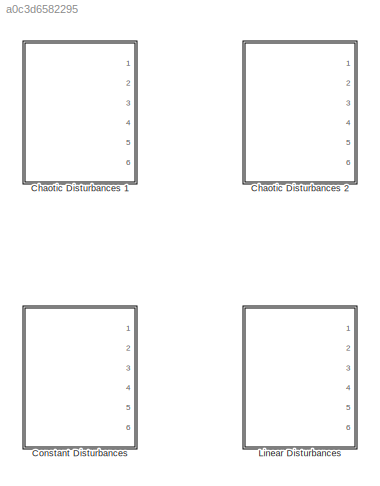
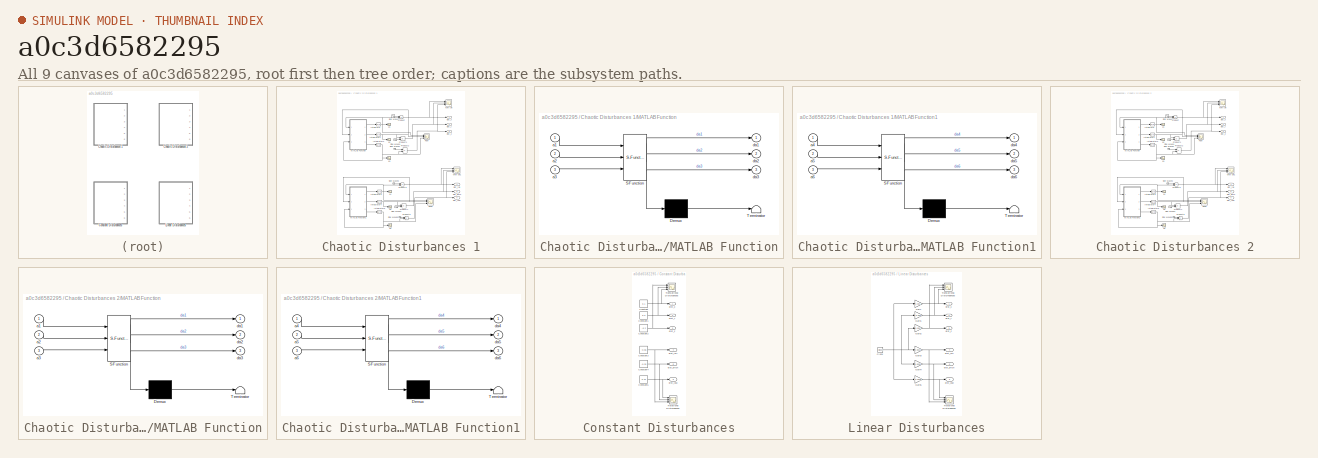
[diagram: thumbnail index - all 9 canvases of the model, root first then tree order]
MODEL slx_a0c3d6582295
KIND model
CONFIG AbsTol = auto
CONFIG EnableMultiTasking = off
CONFIG FixedStep = auto
CONFIG MaxStep = auto
CONFIG MinStep = auto
CONFIG RelTol = 1e-3
CONFIG SampleTimeConstraint = Unconstrained
CONFIG Solver = ode45
CONFIG SolverName = ode45
CONFIG StartTime = 0.0
CONFIG StopTime = 100
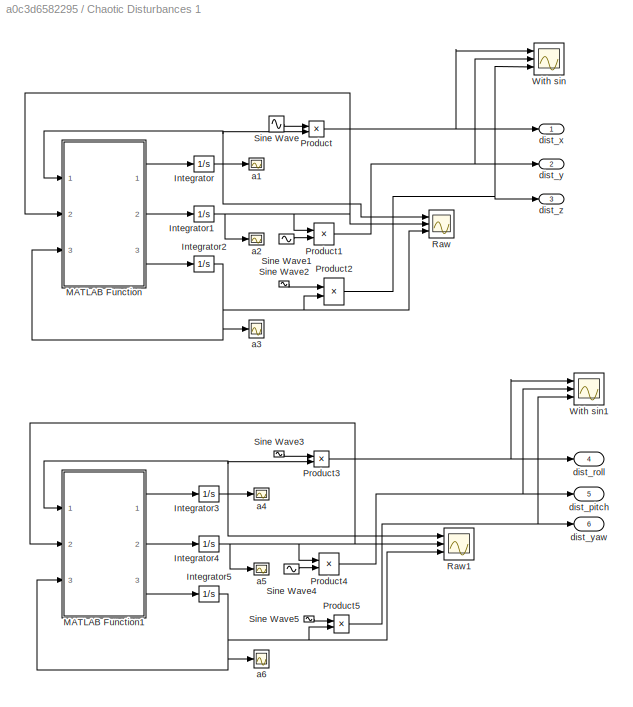
BLOCK [SubSystem] Chaotic Disturbances 1
  Ports = [0, 6]
  RequestExecContextInheritance = off
BLOCK [Integrator] Chaotic Disturbances 1/Integrator
  InitialCondition = -6
  Ports = [1, 1]
BLOCK [Integrator] Chaotic Disturbances 1/Integrator1
  InitialCondition = -5
  Ports = [1, 1]
BLOCK [Integrator] Chaotic Disturbances 1/Integrator2
  InitialCondition = 22
  Ports = [1, 1]
BLOCK [Integrator] Chaotic Disturbances 1/Integrator3
  InitialCondition = -10
  Ports = [1, 1]
BLOCK [Integrator] Chaotic Disturbances 1/Integrator4
  InitialCondition = -12
  Ports = [1, 1]
BLOCK [Integrator] Chaotic Disturbances 1/Integrator5
  InitialCondition = 24
  Ports = [1, 1]
BLOCK [SubSystem] Chaotic Disturbances 1/MATLAB Function
  ErrorFcn = Stateflow.Translate.translate
  PermitHierarchicalResolution = ExplicitOnly
  Ports = [3, 3]
  RequestExecContextInheritance = off
  SFBlockType = MATLAB Function
  TreatAsAtomicUnit = on
BLOCK [Demux] Chaotic Disturbances 1/MATLAB Function/ Demux 
  Outputs = 1
  Ports = [1, 1]
BLOCK [S-Function] Chaotic Disturbances 1/MATLAB Function/ SFunction 
  EnableBusSupport = on
  FunctionName = sf_sfun
  PortCounts = [3 4]
  Ports = [3, 4]
  SFcnIsStateOwnerBlock = off
  SFunctionDeploymentMode = off
  Tag = Stateflow S-Function disturbances 3
BLOCK [Terminator] Chaotic Disturbances 1/MATLAB Function/ Terminator 
BLOCK [Inport] Chaotic Disturbances 1/MATLAB Function/a1
  IconDisplay = Port number
BLOCK [Inport] Chaotic Disturbances 1/MATLAB Function/a2
  IconDisplay = Port number
  Port = 2
BLOCK [Inport] Chaotic Disturbances 1/MATLAB Function/a3
  IconDisplay = Port number
  Port = 3
BLOCK [Outport] Chaotic Disturbances 1/MATLAB Function/da1
  IconDisplay = Port number
BLOCK [Outport] Chaotic Disturbances 1/MATLAB Function/da2
  IconDisplay = Port number
  Port = 2
BLOCK [Outport] Chaotic Disturbances 1/MATLAB Function/da3
  IconDisplay = Port number
  Port = 3
BLOCK [SubSystem] Chaotic Disturbances 1/MATLAB Function1
  ErrorFcn = Stateflow.Translate.translate
  PermitHierarchicalResolution = ExplicitOnly
  Ports = [3, 3]
  RequestExecContextInheritance = off
  SFBlockType = MATLAB Function
  TreatAsAtomicUnit = on
BLOCK [Demux] Chaotic Disturbances 1/MATLAB Function1/ Demux 
  Outputs = 1
  Ports = [1, 1]
BLOCK [S-Function] Chaotic Disturbances 1/MATLAB Function1/ SFunction 
  EnableBusSupport = on
  FunctionName = sf_sfun
  PortCounts = [3 4]
  Ports = [3, 4]
  SFcnIsStateOwnerBlock = off
  SFunctionDeploymentMode = off
  Tag = Stateflow S-Function disturbances 4
BLOCK [Terminator] Chaotic Disturbances 1/MATLAB Function1/ Terminator 
BLOCK [Inport] Chaotic Disturbances 1/MATLAB Function1/a4
  IconDisplay = Port number
BLOCK [Inport] Chaotic Disturbances 1/MATLAB Function1/a5
  IconDisplay = Port number
  Port = 2
BLOCK [Inport] Chaotic Disturbances 1/MATLAB Function1/a6
  IconDisplay = Port number
  Port = 3
BLOCK [Outport] Chaotic Disturbances 1/MATLAB Function1/da4
  IconDisplay = Port number
BLOCK [Outport] Chaotic Disturbances 1/MATLAB Function1/da5
  IconDisplay = Port number
  Port = 2
BLOCK [Outport] Chaotic Disturbances 1/MATLAB Function1/da6
  IconDisplay = Port number
  Port = 3
BLOCK [Product] Chaotic Disturbances 1/Product
  InputSameDT = off
  OutDataTypeStr = Inherit: Inherit via internal rule
  Ports = [2, 1]
  RndMeth = Floor
  SaturateOnIntegerOverflow = off
BLOCK [Product] Chaotic Disturbances 1/Product1
  InputSameDT = off
  OutDataTypeStr = Inherit: Inherit via internal rule
  Ports = [2, 1]
  RndMeth = Floor
  SaturateOnIntegerOverflow = off
BLOCK [Product] Chaotic Disturbances 1/Product2
  InputSameDT = off
  OutDataTypeStr = Inherit: Inherit via internal rule
  Ports = [2, 1]
  RndMeth = Floor
  SaturateOnIntegerOverflow = off
BLOCK [Product] Chaotic Disturbances 1/Product3
  InputSameDT = off
  OutDataTypeStr = Inherit: Inherit via internal rule
  Ports = [2, 1]
  RndMeth = Floor
  SaturateOnIntegerOverflow = off
BLOCK [Product] Chaotic Disturbances 1/Product4
  InputSameDT = off
  OutDataTypeStr = Inherit: Inherit via internal rule
  Ports = [2, 1]
  RndMeth = Floor
  SaturateOnIntegerOverflow = off
BLOCK [Product] Chaotic Disturbances 1/Product5
  InputSameDT = off
  OutDataTypeStr = Inherit: Inherit via internal rule
  Ports = [2, 1]
  RndMeth = Floor
  SaturateOnIntegerOverflow = off
BLOCK [Scope] Chaotic Disturbances 1/Raw
  Floating = off
  NumInputPorts = 3
  Ports = [3]
  ScopeSpecificationString = Simulink.scopes.TimeScopeBlockCfg('CurrentConfiguration', extmgr.ConfigurationSet(extmgr.Configuration('Core','General UI',true),extmgr.Configuration('Core','Source UI',true),extmgr.Configuration('Sources','WiredSimulink',true,'DataLoggingVariableName','ScopeData6'),extmgr.Configuration('Visuals','Time Domain',true,'SerializedDisplays',{struct('MinYLimReal','-25.4324','MaxYLimReal','56.09402','YLa...<+1470ch>
BLOCK [Scope] Chaotic Disturbances 1/Raw1
  Floating = off
  NumInputPorts = 3
  Ports = [3]
  ScopeSpecificationString = Simulink.scopes.TimeScopeBlockCfg('CurrentConfiguration', extmgr.ConfigurationSet(extmgr.Configuration('Core','General UI',true),extmgr.Configuration('Core','Source UI',true),extmgr.Configuration('Sources','WiredSimulink',true,'DataLoggingVariableName','ScopeData7'),extmgr.Configuration('Visuals','Time Domain',true,'SerializedDisplays',{struct('MinYLimReal','24.8548','MaxYLimReal','24.88341','YLab...<+1444ch>
BLOCK [Sin] Chaotic Disturbances 1/Sine Wave
  Amplitude = 0.01
  Frequency = 0.5
  Phase = -25
  Ports = [0, 1]
  SampleTime = 0
BLOCK [Sin] Chaotic Disturbances 1/Sine Wave1
  Amplitude = 0.01
  Frequency = 0.5
  Phase = -45
  Ports = [0, 1]
  SampleTime = 0
BLOCK [Sin] Chaotic Disturbances 1/Sine Wave2
  Amplitude = 0.01
  Frequency = 0.5
  Phase = -65
  Ports = [0, 1]
  SampleTime = 0
BLOCK [Sin] Chaotic Disturbances 1/Sine Wave3
  Amplitude = 0.01
  Frequency = 0.5
  Phase = -10
  Ports = [0, 1]
  SampleTime = 0
BLOCK [Sin] Chaotic Disturbances 1/Sine Wave4
  Amplitude = 0.01
  Frequency = 0.5
  Phase = -30
  Ports = [0, 1]
  SampleTime = 0
BLOCK [Sin] Chaotic Disturbances 1/Sine Wave5
  Amplitude = 0.01
  Frequency = 0.5
  Phase = -50
  Ports = [0, 1]
  SampleTime = 0
BLOCK [Scope] Chaotic Disturbances 1/With sin
  Floating = off
  NumInputPorts = 3
  Ports = [3]
  ScopeSpecificationString = Simulink.scopes.TimeScopeBlockCfg('CurrentConfiguration', extmgr.ConfigurationSet(extmgr.Configuration('Core','General UI',true),extmgr.Configuration('Core','Source UI',true),extmgr.Configuration('Sources','WiredSimulink',true,'DataLoggingVariableName','ScopeData8'),extmgr.Configuration('Visuals','Time Domain',true,'SerializedDisplays',{struct('MinYLimReal','-0.57278','MaxYLimReal','0.5005','YLabe...<+1432ch>  <repeated x4 — deduplicated; at blocks: With sin, Translational Disturbances, Translational Disturnbances>
BLOCK [Scope] Chaotic Disturbances 1/With sin1
  Floating = off
  NumInputPorts = 3
  Ports = [3]
  ScopeSpecificationString = Simulink.scopes.TimeScopeBlockCfg('CurrentConfiguration', extmgr.ConfigurationSet(extmgr.Configuration('Core','General UI',true),extmgr.Configuration('Core','Source UI',true),extmgr.Configuration('Sources','WiredSimulink',true,'DataLoggingVariableName','ScopeData9'),extmgr.Configuration('Visuals','Time Domain',true,'SerializedDisplays',{struct('MinYLimReal','-0.50118','MaxYLimReal','0.48485','YLab...<+1435ch>  <repeated x4 — deduplicated; at blocks: With sin1, Rotational Disturbances>
BLOCK [Scope] Chaotic Disturbances 1/a1 
  Floating = off
  NumInputPorts = 1
  Ports = [1]
  ScopeSpecificationString = Simulink.scopes.TimeScopeBlockCfg('CurrentConfiguration', extmgr.ConfigurationSet(extmgr.Configuration('Core','General UI',true),extmgr.Configuration('Core','Source UI',true),extmgr.Configuration('Sources','WiredSimulink',true,'DataLoggingVariableName','ScopeData10'),extmgr.Configuration('Visuals','Time Domain',true,'SerializedDisplays',{struct('MinYLimReal','-20.42951','MaxYLimReal','23.90809','Y...<+1403ch>
BLOCK [Scope] Chaotic Disturbances 1/a2
  Floating = off
  NumInputPorts = 1
  Ports = [1]
  ScopeSpecificationString = Simulink.scopes.TimeScopeBlockCfg('CurrentConfiguration', extmgr.ConfigurationSet(extmgr.Configuration('Core','General UI',true),extmgr.Configuration('Core','Source UI',true),extmgr.Configuration('Sources','WiredSimulink',true,'DataLoggingVariableName','ScopeData12'),extmgr.Configuration('Visuals','Time Domain',true,'SerializedDisplays',{struct('MinYLimReal','-26.78015','MaxYLimReal','33.39911','Y...<+1404ch>
BLOCK [Scope] Chaotic Disturbances 1/a3
  Floating = off
  NumInputPorts = 1
  Ports = [1]
  ScopeSpecificationString = Simulink.scopes.TimeScopeBlockCfg('CurrentConfiguration', extmgr.ConfigurationSet(extmgr.Configuration('Core','General UI',true),extmgr.Configuration('Core','Source UI',true),extmgr.Configuration('Sources','WiredSimulink',true,'DataLoggingVariableName','ScopeData14'),extmgr.Configuration('Visuals','Time Domain',true,'SerializedDisplays',{struct('MinYLimReal','1.77337','MaxYLimReal','48.67578','YLa...<+1400ch>
BLOCK [Scope] Chaotic Disturbances 1/a4
  Floating = off
  NumInputPorts = 1
  Ports = [1]
  ScopeSpecificationString = Simulink.scopes.TimeScopeBlockCfg('CurrentConfiguration', extmgr.ConfigurationSet(extmgr.Configuration('Core','General UI',true),extmgr.Configuration('Core','Source UI',true),extmgr.Configuration('Sources','WiredSimulink',true,'DataLoggingVariableName','ScopeData11'),extmgr.Configuration('Visuals','Time Domain',true,'SerializedDisplays',{struct('MinYLimReal','-20.13212','MaxYLimReal','23.39392','Y...<+1403ch>
BLOCK [Scope] Chaotic Disturbances 1/a5
  Floating = off
  NumInputPorts = 1
  Ports = [1]
  ScopeSpecificationString = Simulink.scopes.TimeScopeBlockCfg('CurrentConfiguration', extmgr.ConfigurationSet(extmgr.Configuration('Core','General UI',true),extmgr.Configuration('Core','Source UI',true),extmgr.Configuration('Sources','WiredSimulink',true,'DataLoggingVariableName','ScopeData13'),extmgr.Configuration('Visuals','Time Domain',true,'SerializedDisplays',{struct('MinYLimReal','-28.40052','MaxYLimReal','27.18299','Y...<+1404ch>
BLOCK [Scope] Chaotic Disturbances 1/a6
  Floating = off
  NumInputPorts = 1
  Ports = [1]
  ScopeSpecificationString = Simulink.scopes.TimeScopeBlockCfg('CurrentConfiguration', extmgr.ConfigurationSet(extmgr.Configuration('Core','General UI',true),extmgr.Configuration('Core','Source UI',true),extmgr.Configuration('Sources','WiredSimulink',true,'DataLoggingVariableName','ScopeData15'),extmgr.Configuration('Visuals','Time Domain',true,'SerializedDisplays',{struct('MinYLimReal','-0.14299','MaxYLimReal','49.22803','YL...<+1402ch>
BLOCK [Outport] Chaotic Disturbances 1/dist_pitch
  IconDisplay = Port number
  Port = 5
BLOCK [Outport] Chaotic Disturbances 1/dist_roll
  IconDisplay = Port number
  Port = 4
BLOCK [Outport] Chaotic Disturbances 1/dist_x
  IconDisplay = Port number
BLOCK [Outport] Chaotic Disturbances 1/dist_y
  IconDisplay = Port number
  Port = 2
BLOCK [Outport] Chaotic Disturbances 1/dist_yaw
  IconDisplay = Port number
  Port = 6
BLOCK [Outport] Chaotic Disturbances 1/dist_z
  IconDisplay = Port number
  Port = 3
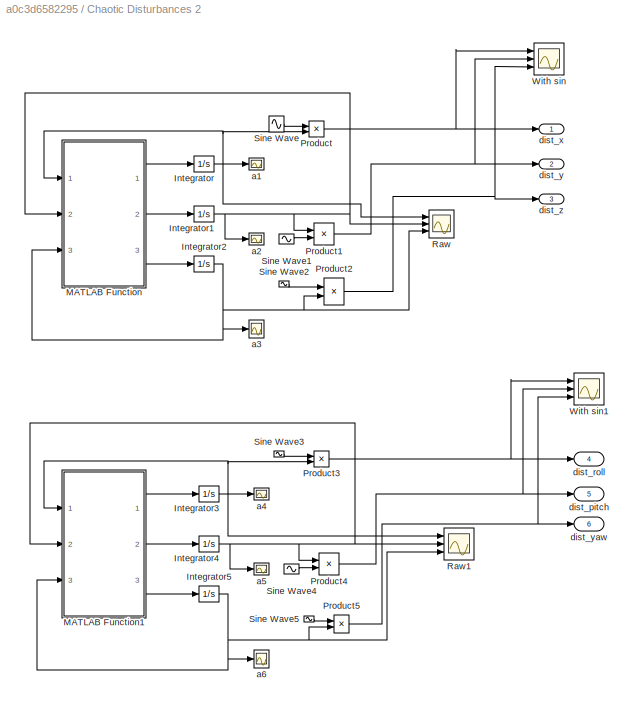
BLOCK [SubSystem] Chaotic Disturbances 2
  Ports = [0, 6]
  RequestExecContextInheritance = off
BLOCK [Integrator] Chaotic Disturbances 2/Integrator
  InitialCondition = -2
  Ports = [1, 1]
BLOCK [Integrator] Chaotic Disturbances 2/Integrator1
  InitialCondition = -8
  Ports = [1, 1]
BLOCK [Integrator] Chaotic Disturbances 2/Integrator2
  InitialCondition = 15
  Ports = [1, 1]
BLOCK [Integrator] Chaotic Disturbances 2/Integrator3
  InitialCondition = -4
  Ports = [1, 1]
BLOCK [Integrator] Chaotic Disturbances 2/Integrator4
  InitialCondition = -15
  Ports = [1, 1]
BLOCK [Integrator] Chaotic Disturbances 2/Integrator5
  InitialCondition = 20
  Ports = [1, 1]
BLOCK [SubSystem] Chaotic Disturbances 2/MATLAB Function
  ErrorFcn = Stateflow.Translate.translate
  PermitHierarchicalResolution = ExplicitOnly
  Ports = [3, 3]
  RequestExecContextInheritance = off
  SFBlockType = MATLAB Function
  TreatAsAtomicUnit = on
BLOCK [Demux] Chaotic Disturbances 2/MATLAB Function/ Demux 
  Outputs = 1
  Ports = [1, 1]
BLOCK [S-Function] Chaotic Disturbances 2/MATLAB Function/ SFunction 
  EnableBusSupport = on
  FunctionName = sf_sfun
  PortCounts = [3 4]
  Ports = [3, 4]
  SFcnIsStateOwnerBlock = off
  SFunctionDeploymentMode = off
  Tag = Stateflow S-Function disturbances 1
BLOCK [Terminator] Chaotic Disturbances 2/MATLAB Function/ Terminator 
BLOCK [Inport] Chaotic Disturbances 2/MATLAB Function/a1
  IconDisplay = Port number
BLOCK [Inport] Chaotic Disturbances 2/MATLAB Function/a2
  IconDisplay = Port number
  Port = 2
BLOCK [Inport] Chaotic Disturbances 2/MATLAB Function/a3
  IconDisplay = Port number
  Port = 3
BLOCK [Outport] Chaotic Disturbances 2/MATLAB Function/da1
  IconDisplay = Port number
BLOCK [Outport] Chaotic Disturbances 2/MATLAB Function/da2
  IconDisplay = Port number
  Port = 2
BLOCK [Outport] Chaotic Disturbances 2/MATLAB Function/da3
  IconDisplay = Port number
  Port = 3
BLOCK [SubSystem] Chaotic Disturbances 2/MATLAB Function1
  ErrorFcn = Stateflow.Translate.translate
  PermitHierarchicalResolution = ExplicitOnly
  Ports = [3, 3]
  RequestExecContextInheritance = off
  SFBlockType = MATLAB Function
  TreatAsAtomicUnit = on
BLOCK [Demux] Chaotic Disturbances 2/MATLAB Function1/ Demux 
  Outputs = 1
  Ports = [1, 1]
BLOCK [S-Function] Chaotic Disturbances 2/MATLAB Function1/ SFunction 
  EnableBusSupport = on
  FunctionName = sf_sfun
  PortCounts = [3 4]
  Ports = [3, 4]
  SFcnIsStateOwnerBlock = off
  SFunctionDeploymentMode = off
  Tag = Stateflow S-Function disturbances 2
BLOCK [Terminator] Chaotic Disturbances 2/MATLAB Function1/ Terminator 
BLOCK [Inport] Chaotic Disturbances 2/MATLAB Function1/a4
  IconDisplay = Port number
BLOCK [Inport] Chaotic Disturbances 2/MATLAB Function1/a5
  IconDisplay = Port number
  Port = 2
BLOCK [Inport] Chaotic Disturbances 2/MATLAB Function1/a6
  IconDisplay = Port number
  Port = 3
BLOCK [Outport] Chaotic Disturbances 2/MATLAB Function1/da4
  IconDisplay = Port number
BLOCK [Outport] Chaotic Disturbances 2/MATLAB Function1/da5
  IconDisplay = Port number
  Port = 2
BLOCK [Outport] Chaotic Disturbances 2/MATLAB Function1/da6
  IconDisplay = Port number
  Port = 3
BLOCK [Product] Chaotic Disturbances 2/Product
  InputSameDT = off
  OutDataTypeStr = Inherit: Inherit via internal rule
  Ports = [2, 1]
  RndMeth = Floor
  SaturateOnIntegerOverflow = off
BLOCK [Product] Chaotic Disturbances 2/Product1
  InputSameDT = off
  OutDataTypeStr = Inherit: Inherit via internal rule
  Ports = [2, 1]
  RndMeth = Floor
  SaturateOnIntegerOverflow = off
BLOCK [Product] Chaotic Disturbances 2/Product2
  InputSameDT = off
  OutDataTypeStr = Inherit: Inherit via internal rule
  Ports = [2, 1]
  RndMeth = Floor
  SaturateOnIntegerOverflow = off
BLOCK [Product] Chaotic Disturbances 2/Product3
  InputSameDT = off
  OutDataTypeStr = Inherit: Inherit via internal rule
  Ports = [2, 1]
  RndMeth = Floor
  SaturateOnIntegerOverflow = off
BLOCK [Product] Chaotic Disturbances 2/Product4
  InputSameDT = off
  OutDataTypeStr = Inherit: Inherit via internal rule
  Ports = [2, 1]
  RndMeth = Floor
  SaturateOnIntegerOverflow = off
BLOCK [Product] Chaotic Disturbances 2/Product5
  InputSameDT = off
  OutDataTypeStr = Inherit: Inherit via internal rule
  Ports = [2, 1]
  RndMeth = Floor
  SaturateOnIntegerOverflow = off
BLOCK [Scope] Chaotic Disturbances 2/Raw
  Floating = off
  NumInputPorts = 3
  Ports = [3]
  ScopeSpecificationString = Simulink.scopes.TimeScopeBlockCfg('CurrentConfiguration', extmgr.ConfigurationSet(extmgr.Configuration('Core','General UI',true),extmgr.Configuration('Core','Source UI',true),extmgr.Configuration('Sources','WiredSimulink',true,'DataLoggingVariableName','ScopeData6'),extmgr.Configuration('Visuals','Time Domain',true,'SerializedDisplays',{struct('MinYLimReal','-25.4324','MaxYLimReal','56.09402','YLa...<+1470ch>
BLOCK [Scope] Chaotic Disturbances 2/Raw1
  Floating = off
  NumInputPorts = 3
  Ports = [3]
  ScopeSpecificationString = Simulink.scopes.TimeScopeBlockCfg('CurrentConfiguration', extmgr.ConfigurationSet(extmgr.Configuration('Core','General UI',true),extmgr.Configuration('Core','Source UI',true),extmgr.Configuration('Sources','WiredSimulink',true,'DataLoggingVariableName','ScopeData7'),extmgr.Configuration('Visuals','Time Domain',true,'SerializedDisplays',{struct('MinYLimReal','24.8548','MaxYLimReal','24.88341','YLab...<+1444ch>
BLOCK [Sin] Chaotic Disturbances 2/Sine Wave
  Amplitude = 0.01
  Frequency = 0.5
  Phase = -20
  Ports = [0, 1]
  SampleTime = 0
BLOCK [Sin] Chaotic Disturbances 2/Sine Wave1
  Amplitude = 0.01
  Frequency = 0.5
  Phase = -40
  Ports = [0, 1]
  SampleTime = 0
BLOCK [Sin] Chaotic Disturbances 2/Sine Wave2
  Amplitude = 0.01
  Frequency = 0.5
  Phase = -60
  Ports = [0, 1]
  SampleTime = 0
BLOCK [Sin] Chaotic Disturbances 2/Sine Wave3
  Amplitude = 0.01
  Frequency = 0.5
  Phase = -15
  Ports = [0, 1]
  SampleTime = 0
BLOCK [Sin] Chaotic Disturbances 2/Sine Wave4
  Amplitude = 0.01
  Frequency = 0.5
  Phase = -35
  Ports = [0, 1]
  SampleTime = 0
BLOCK [Sin] Chaotic Disturbances 2/Sine Wave5
  Amplitude = 0.01
  Frequency = 0.5
  Phase = -55
  Ports = [0, 1]
  SampleTime = 0
BLOCK [Scope] Chaotic Disturbances 2/With sin
  Floating = off
  NumInputPorts = 3
  Ports = [3]
BLOCK [Scope] Chaotic Disturbances 2/With sin1
  Floating = off
  NumInputPorts = 3
  Ports = [3]
BLOCK [Scope] Chaotic Disturbances 2/a1 
  Floating = off
  NumInputPorts = 1
  Ports = [1]
  ScopeSpecificationString = Simulink.scopes.TimeScopeBlockCfg('CurrentConfiguration', extmgr.ConfigurationSet(extmgr.Configuration('Core','General UI',true),extmgr.Configuration('Core','Source UI',true),extmgr.Configuration('Sources','WiredSimulink',true,'DataLoggingVariableName','ScopeData10'),extmgr.Configuration('Visuals','Time Domain',true,'SerializedDisplays',{struct('MinYLimReal','-20.42951','MaxYLimReal','23.90809','Y...<+1403ch>
BLOCK [Scope] Chaotic Disturbances 2/a2
  Floating = off
  NumInputPorts = 1
  Ports = [1]
  ScopeSpecificationString = Simulink.scopes.TimeScopeBlockCfg('CurrentConfiguration', extmgr.ConfigurationSet(extmgr.Configuration('Core','General UI',true),extmgr.Configuration('Core','Source UI',true),extmgr.Configuration('Sources','WiredSimulink',true,'DataLoggingVariableName','ScopeData12'),extmgr.Configuration('Visuals','Time Domain',true,'SerializedDisplays',{struct('MinYLimReal','-26.78015','MaxYLimReal','33.39911','Y...<+1404ch>
BLOCK [Scope] Chaotic Disturbances 2/a3
  Floating = off
  NumInputPorts = 1
  Ports = [1]
  ScopeSpecificationString = Simulink.scopes.TimeScopeBlockCfg('CurrentConfiguration', extmgr.ConfigurationSet(extmgr.Configuration('Core','General UI',true),extmgr.Configuration('Core','Source UI',true),extmgr.Configuration('Sources','WiredSimulink',true,'DataLoggingVariableName','ScopeData14'),extmgr.Configuration('Visuals','Time Domain',true,'SerializedDisplays',{struct('MinYLimReal','1.77337','MaxYLimReal','48.67578','YLa...<+1400ch>
BLOCK [Scope] Chaotic Disturbances 2/a4
  Floating = off
  NumInputPorts = 1
  Ports = [1]
  ScopeSpecificationString = Simulink.scopes.TimeScopeBlockCfg('CurrentConfiguration', extmgr.ConfigurationSet(extmgr.Configuration('Core','General UI',true),extmgr.Configuration('Core','Source UI',true),extmgr.Configuration('Sources','WiredSimulink',true,'DataLoggingVariableName','ScopeData11'),extmgr.Configuration('Visuals','Time Domain',true,'SerializedDisplays',{struct('MinYLimReal','-20.13212','MaxYLimReal','23.39392','Y...<+1403ch>
BLOCK [Scope] Chaotic Disturbances 2/a5
  Floating = off
  NumInputPorts = 1
  Ports = [1]
  ScopeSpecificationString = Simulink.scopes.TimeScopeBlockCfg('CurrentConfiguration', extmgr.ConfigurationSet(extmgr.Configuration('Core','General UI',true),extmgr.Configuration('Core','Source UI',true),extmgr.Configuration('Sources','WiredSimulink',true,'DataLoggingVariableName','ScopeData13'),extmgr.Configuration('Visuals','Time Domain',true,'SerializedDisplays',{struct('MinYLimReal','-28.40052','MaxYLimReal','27.18299','Y...<+1404ch>
BLOCK [Scope] Chaotic Disturbances 2/a6
  Floating = off
  NumInputPorts = 1
  Ports = [1]
  ScopeSpecificationString = Simulink.scopes.TimeScopeBlockCfg('CurrentConfiguration', extmgr.ConfigurationSet(extmgr.Configuration('Core','General UI',true),extmgr.Configuration('Core','Source UI',true),extmgr.Configuration('Sources','WiredSimulink',true,'DataLoggingVariableName','ScopeData15'),extmgr.Configuration('Visuals','Time Domain',true,'SerializedDisplays',{struct('MinYLimReal','-2.76714','MaxYLimReal','52.19983','YL...<+1402ch>
BLOCK [Outport] Chaotic Disturbances 2/dist_pitch
  IconDisplay = Port number
  Port = 5
BLOCK [Outport] Chaotic Disturbances 2/dist_roll
  IconDisplay = Port number
  Port = 4
BLOCK [Outport] Chaotic Disturbances 2/dist_x
  IconDisplay = Port number
BLOCK [Outport] Chaotic Disturbances 2/dist_y
  IconDisplay = Port number
  Port = 2
BLOCK [Outport] Chaotic Disturbances 2/dist_yaw
  IconDisplay = Port number
  Port = 6
BLOCK [Outport] Chaotic Disturbances 2/dist_z
  IconDisplay = Port number
  Port = 3
BLOCK [SubSystem] Constant Disturbances
  Ports = [0, 6]
  RequestExecContextInheritance = off
BLOCK [Constant] Constant Disturbances/Constant
  Value = 0.1
BLOCK [Constant] Constant Disturbances/Constant1
  Value = 0.3
BLOCK [Constant] Constant Disturbances/Constant2
  Value = -0.2
BLOCK [Constant] Constant Disturbances/Constant3
  Value = -0.05
BLOCK [Constant] Constant Disturbances/Constant4
  Value = -0.25
BLOCK [Constant] Constant Disturbances/Constant5
  Value = 0.15
BLOCK [Scope] Constant Disturbances/Rotational Disturbances
  Floating = off
  NumInputPorts = 3
  Ports = [3]
BLOCK [Scope] Constant Disturbances/Translational Disturbances
  Floating = off
  NumInputPorts = 3
  Ports = [3]
BLOCK [Outport] Constant Disturbances/dist_pitch
  IconDisplay = Port number
  Port = 5
BLOCK [Outport] Constant Disturbances/dist_roll
  IconDisplay = Port number
  Port = 4
BLOCK [Outport] Constant Disturbances/dist_x
  IconDisplay = Port number
BLOCK [Outport] Constant Disturbances/dist_y
  IconDisplay = Port number
  Port = 2
BLOCK [Outport] Constant Disturbances/dist_yaw
  IconDisplay = Port number
  Port = 6
BLOCK [Outport] Constant Disturbances/dist_z
  IconDisplay = Port number
  Port = 3
BLOCK [SubSystem] Linear Disturbances
  Ports = [0, 6]
  RequestExecContextInheritance = off
BLOCK [Clock] Linear Disturbances/Clock
BLOCK [Gain] Linear Disturbances/Gain
  Gain = 0.001
  OutDataTypeStr = Inherit: Inherit via internal rule
  ParamDataTypeStr = Inherit: Inherit via internal rule
  SaturateOnIntegerOverflow = off
BLOCK [Gain] Linear Disturbances/Gain1
  Gain = -0.003
  OutDataTypeStr = Inherit: Inherit via internal rule
  ParamDataTypeStr = Inherit: Inherit via internal rule
  SaturateOnIntegerOverflow = off
BLOCK [Gain] Linear Disturbances/Gain2
  Gain = 0.002
  OutDataTypeStr = Inherit: Inherit via internal rule
  ParamDataTypeStr = Inherit: Inherit via internal rule
  SaturateOnIntegerOverflow = off
BLOCK [Gain] Linear Disturbances/Gain3
  Gain = 0.0015
  OutDataTypeStr = Inherit: Inherit via internal rule
  ParamDataTypeStr = Inherit: Inherit via internal rule
  SaturateOnIntegerOverflow = off
BLOCK [Gain] Linear Disturbances/Gain4
  Gain = 0.0025
  OutDataTypeStr = Inherit: Inherit via internal rule
  ParamDataTypeStr = Inherit: Inherit via internal rule
  SaturateOnIntegerOverflow = off
BLOCK [Gain] Linear Disturbances/Gain5
  Gain = -0.0025
  OutDataTypeStr = Inherit: Inherit via internal rule
  ParamDataTypeStr = Inherit: Inherit via internal rule
  SaturateOnIntegerOverflow = off
BLOCK [Scope] Linear Disturbances/Rotational Disturbances
  Floating = off
  NumInputPorts = 3
  Ports = [3]
BLOCK [Scope] Linear Disturbances/Translational Disturnbances
  Floating = off
  NumInputPorts = 3
  Ports = [3]
BLOCK [Outport] Linear Disturbances/dist_pitch
  IconDisplay = Port number
  Port = 5
BLOCK [Outport] Linear Disturbances/dist_roll
  IconDisplay = Port number
  Port = 4
BLOCK [Outport] Linear Disturbances/dist_x
  IconDisplay = Port number
BLOCK [Outport] Linear Disturbances/dist_y
  IconDisplay = Port number
  Port = 2
BLOCK [Outport] Linear Disturbances/dist_yaw
  IconDisplay = Port number
  Port = 6
BLOCK [Outport] Linear Disturbances/dist_z
  IconDisplay = Port number
  Port = 3
NET Chaotic Disturbances 1/Integrator1:1 -> Chaotic Disturbances 1/MATLAB Function:2, Chaotic Disturbances 1/Product1:1, Chaotic Disturbances 1/Raw:2, Chaotic Disturbances 1/a2:1
NET Chaotic Disturbances 1/Integrator2:1 -> Chaotic Disturbances 1/MATLAB Function:3, Chaotic Disturbances 1/Product2:2, Chaotic Disturbances 1/Raw:3, Chaotic Disturbances 1/a3:1
NET Chaotic Disturbances 1/Integrator3:1 -> Chaotic Disturbances 1/MATLAB Function1:1, Chaotic Disturbances 1/Product3:2, Chaotic Disturbances 1/Raw1:1, Chaotic Disturbances 1/a4:1
NET Chaotic Disturbances 1/Integrator4:1 -> Chaotic Disturbances 1/MATLAB Function1:2, Chaotic Disturbances 1/Product4:1, Chaotic Disturbances 1/Raw1:2, Chaotic Disturbances 1/a5:1
NET Chaotic Disturbances 1/Integrator5:1 -> Chaotic Disturbances 1/MATLAB Function1:3, Chaotic Disturbances 1/Product5:2, Chaotic Disturbances 1/Raw1:3, Chaotic Disturbances 1/a6:1
NET Chaotic Disturbances 1/Integrator:1 -> Chaotic Disturbances 1/MATLAB Function:1, Chaotic Disturbances 1/Product:2, Chaotic Disturbances 1/Raw:1, Chaotic Disturbances 1/a1 :1
LINE Chaotic Disturbances 1/MATLAB Function1:1 -> Chaotic Disturbances 1/Integrator3:1
LINE Chaotic Disturbances 1/MATLAB Function1:2 -> Chaotic Disturbances 1/Integrator4:1
LINE Chaotic Disturbances 1/MATLAB Function1:3 -> Chaotic Disturbances 1/Integrator5:1
LINE Chaotic Disturbances 1/MATLAB Function:1 -> Chaotic Disturbances 1/Integrator:1
LINE Chaotic Disturbances 1/MATLAB Function:2 -> Chaotic Disturbances 1/Integrator1:1
LINE Chaotic Disturbances 1/MATLAB Function:3 -> Chaotic Disturbances 1/Integrator2:1
NET Chaotic Disturbances 1/Product1:1 -> Chaotic Disturbances 1/With sin:2, Chaotic Disturbances 1/dist_y:1
NET Chaotic Disturbances 1/Product2:1 -> Chaotic Disturbances 1/With sin:3, Chaotic Disturbances 1/dist_z:1
NET Chaotic Disturbances 1/Product3:1 -> Chaotic Disturbances 1/With sin1:1, Chaotic Disturbances 1/dist_roll:1
NET Chaotic Disturbances 1/Product4:1 -> Chaotic Disturbances 1/With sin1:2, Chaotic Disturbances 1/dist_pitch:1
NET Chaotic Disturbances 1/Product5:1 -> Chaotic Disturbances 1/With sin1:3, Chaotic Disturbances 1/dist_yaw:1
NET Chaotic Disturbances 1/Product:1 -> Chaotic Disturbances 1/With sin:1, Chaotic Disturbances 1/dist_x:1
LINE Chaotic Disturbances 1/Sine Wave1:1 -> Chaotic Disturbances 1/Product1:2
LINE Chaotic Disturbances 1/Sine Wave2:1 -> Chaotic Disturbances 1/Product2:1
LINE Chaotic Disturbances 1/Sine Wave3:1 -> Chaotic Disturbances 1/Product3:1
LINE Chaotic Disturbances 1/Sine Wave4:1 -> Chaotic Disturbances 1/Product4:2
LINE Chaotic Disturbances 1/Sine Wave5:1 -> Chaotic Disturbances 1/Product5:1
LINE Chaotic Disturbances 1/Sine Wave:1 -> Chaotic Disturbances 1/Product:1
NET Chaotic Disturbances 2/Integrator1:1 -> Chaotic Disturbances 2/MATLAB Function:2, Chaotic Disturbances 2/Product1:1, Chaotic Disturbances 2/Raw:2, Chaotic Disturbances 2/a2:1
NET Chaotic Disturbances 2/Integrator2:1 -> Chaotic Disturbances 2/MATLAB Function:3, Chaotic Disturbances 2/Product2:2, Chaotic Disturbances 2/Raw:3, Chaotic Disturbances 2/a3:1
NET Chaotic Disturbances 2/Integrator3:1 -> Chaotic Disturbances 2/MATLAB Function1:1, Chaotic Disturbances 2/Product3:2, Chaotic Disturbances 2/Raw1:1, Chaotic Disturbances 2/a4:1
NET Chaotic Disturbances 2/Integrator4:1 -> Chaotic Disturbances 2/MATLAB Function1:2, Chaotic Disturbances 2/Product4:1, Chaotic Disturbances 2/Raw1:2, Chaotic Disturbances 2/a5:1
NET Chaotic Disturbances 2/Integrator5:1 -> Chaotic Disturbances 2/MATLAB Function1:3, Chaotic Disturbances 2/Product5:2, Chaotic Disturbances 2/Raw1:3, Chaotic Disturbances 2/a6:1
NET Chaotic Disturbances 2/Integrator:1 -> Chaotic Disturbances 2/MATLAB Function:1, Chaotic Disturbances 2/Product:2, Chaotic Disturbances 2/Raw:1, Chaotic Disturbances 2/a1 :1
LINE Chaotic Disturbances 2/MATLAB Function1:1 -> Chaotic Disturbances 2/Integrator3:1
LINE Chaotic Disturbances 2/MATLAB Function1:2 -> Chaotic Disturbances 2/Integrator4:1
LINE Chaotic Disturbances 2/MATLAB Function1:3 -> Chaotic Disturbances 2/Integrator5:1
LINE Chaotic Disturbances 2/MATLAB Function:1 -> Chaotic Disturbances 2/Integrator:1
LINE Chaotic Disturbances 2/MATLAB Function:2 -> Chaotic Disturbances 2/Integrator1:1
LINE Chaotic Disturbances 2/MATLAB Function:3 -> Chaotic Disturbances 2/Integrator2:1
NET Chaotic Disturbances 2/Product1:1 -> Chaotic Disturbances 2/With sin:2, Chaotic Disturbances 2/dist_y:1
NET Chaotic Disturbances 2/Product2:1 -> Chaotic Disturbances 2/With sin:3, Chaotic Disturbances 2/dist_z:1
NET Chaotic Disturbances 2/Product3:1 -> Chaotic Disturbances 2/With sin1:1, Chaotic Disturbances 2/dist_roll:1
NET Chaotic Disturbances 2/Product4:1 -> Chaotic Disturbances 2/With sin1:2, Chaotic Disturbances 2/dist_pitch:1
NET Chaotic Disturbances 2/Product5:1 -> Chaotic Disturbances 2/With sin1:3, Chaotic Disturbances 2/dist_yaw:1
NET Chaotic Disturbances 2/Product:1 -> Chaotic Disturbances 2/With sin:1, Chaotic Disturbances 2/dist_x:1
LINE Chaotic Disturbances 2/Sine Wave1:1 -> Chaotic Disturbances 2/Product1:2
LINE Chaotic Disturbances 2/Sine Wave2:1 -> Chaotic Disturbances 2/Product2:1
LINE Chaotic Disturbances 2/Sine Wave3:1 -> Chaotic Disturbances 2/Product3:1
LINE Chaotic Disturbances 2/Sine Wave4:1 -> Chaotic Disturbances 2/Product4:2
LINE Chaotic Disturbances 2/Sine Wave5:1 -> Chaotic Disturbances 2/Product5:1
LINE Chaotic Disturbances 2/Sine Wave:1 -> Chaotic Disturbances 2/Product:1
NET Constant Disturbances/Constant1:1 -> Constant Disturbances/Translational Disturbances:2, Constant Disturbances/dist_y:1
NET Constant Disturbances/Constant2:1 -> Constant Disturbances/Translational Disturbances:1, Constant Disturbances/dist_z:1
NET Constant Disturbances/Constant3:1 -> Constant Disturbances/Rotational Disturbances:3, Constant Disturbances/dist_roll:1
NET Constant Disturbances/Constant4:1 -> Constant Disturbances/Rotational Disturbances:2, Constant Disturbances/dist_pitch:1
NET Constant Disturbances/Constant5:1 -> Constant Disturbances/Rotational Disturbances:1, Constant Disturbances/dist_yaw:1
NET Constant Disturbances/Constant:1 -> Constant Disturbances/Translational Disturbances:3, Constant Disturbances/dist_x:1
NET Linear Disturbances/Clock:1 -> Linear Disturbances/Gain1:1, Linear Disturbances/Gain2:1, Linear Disturbances/Gain3:1, Linear Disturbances/Gain4:1, Linear Disturbances/Gain5:1, Linear Disturbances/Gain:1
NET Linear Disturbances/Gain1:1 -> Linear Disturbances/Translational Disturnbances:2, Linear Disturbances/dist_y:1
NET Linear Disturbances/Gain2:1 -> Linear Disturbances/Translational Disturnbances:1, Linear Disturbances/dist_z:1
NET Linear Disturbances/Gain3:1 -> Linear Disturbances/Rotational Disturbances:3, Linear Disturbances/dist_roll:1
NET Linear Disturbances/Gain4:1 -> Linear Disturbances/Rotational Disturbances:2, Linear Disturbances/dist_pitch:1
NET Linear Disturbances/Gain5:1 -> Linear Disturbances/Rotational Disturbances:1, Linear Disturbances/dist_yaw:1
NET Linear Disturbances/Gain:1 -> Linear Disturbances/Translational Disturnbances:3, Linear Disturbances/dist_x:1
note: NET lines group one-source signal fan-out (src -> all destinations, sorted); 1:1 wires keep LINE
CHART Chaotic
Disturbances 2/MATLAB Function states=1 transitions=1
  STATE_LABEL 'eML_blk_kernel()'
  STATE_LABEL 'SCRIPT:\nfunction [da1, da2, da3] = lorenz_system(a1, a2, a3)\nsigma = 10; rho = 28; beta = 8/3;\nda1 = 0.1*(sigma*(a2-a1));\nda2 = 0.1*(rho*a1 - a2 - a1*a3);\nda3 = 0.1*(a1*a2 - beta*a3);\nend\n'
CHART Chaotic
Disturbances 2/MATLAB Function1 states=1 transitions=1
  STATE_LABEL 'eML_blk_kernel()'
  STATE_LABEL 'SCRIPT:\nfunction [da4, da5, da6] = lorenz_system(a4, a5, a6)\nsigma = 10; rho = 28; beta = 8/3;\nda4 = 0.1*(sigma*(a5-a4));\nda5 = 0.1*(rho*a4 - a5 - a4*a6);\nda6 = 0.1*(a4*a5 - beta*a6);\nend\n'
CHART Chaotic
Disturbances 1/MATLAB Function states=1 transitions=1
  STATE_LABEL 'eML_blk_kernel()'
  STATE_LABEL 'SCRIPT:\nfunction [da1, da2, da3] = lorenz_system(a1, a2, a3)\nsigma = 10; rho = 28; beta = 8/3;\nda1 = 0.15*(sigma*(a2-a1));\nda2 = 0.15*(rho*a1 - a2 - a1*a3);\nda3 = 0.15*(a1*a2 - beta*a3);\nend\n'
CHART Chaotic
Disturbances 1/MATLAB Function1 states=1 transitions=1
  STATE_LABEL 'eML_blk_kernel()'
  STATE_LABEL 'SCRIPT:\nfunction [da4, da5, da6] = lorenz_system(a4, a5, a6)\nsigma = 10; rho = 28; beta = 8/3;\nda4 = 0.15*(sigma*(a5-a4));\nda5 = 0.15*(rho*a4 - a5 - a4*a6);\nda6 = 0.15*(a4*a5 - beta*a6);\nend\n'
